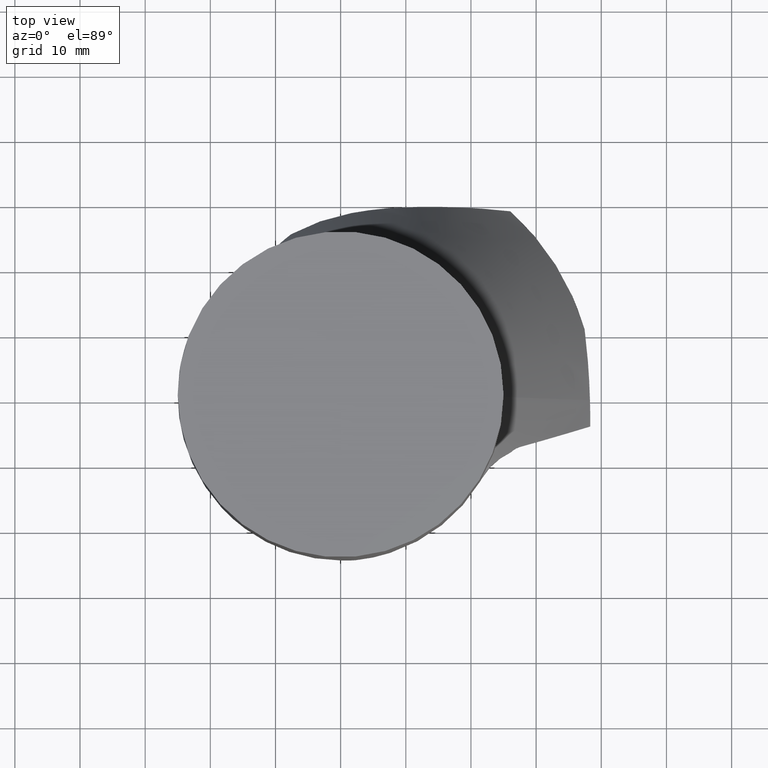
[diagram: clean part render]
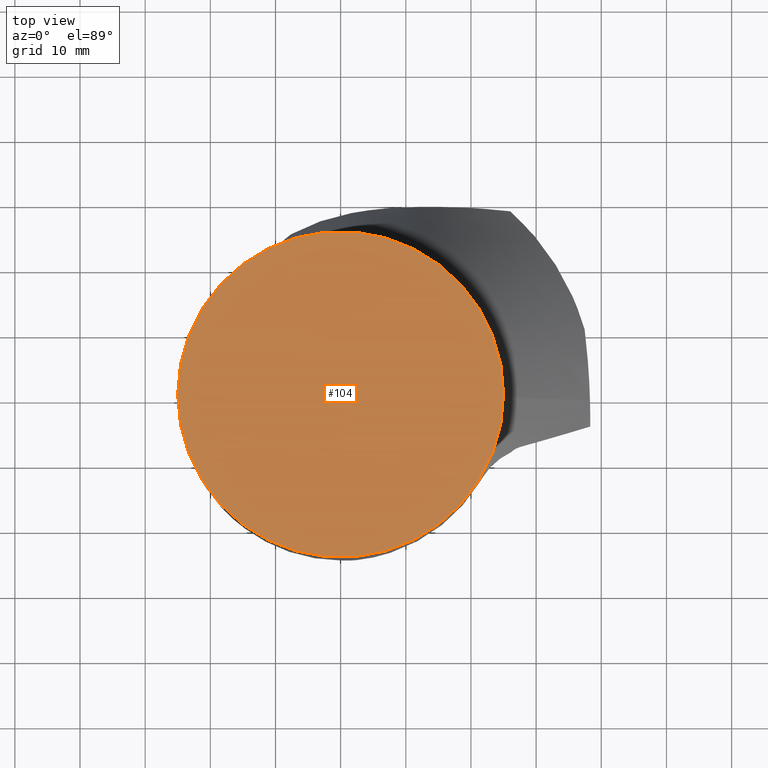
[diagram: same view with one face highlighted and labeled with its STEP entity id]
A machine part, top view. The second image highlights one B-rep face of the part: STEP entity #104.
In plain terms, the highlighted planar face has unit normal (0, 0, 1).
Its self-contained STEP definition (entity closure, byte-faithful):
#104=ADVANCED_FACE('',(#164),#165,.T.);
#164=FACE_OUTER_BOUND('',#224,.T.);
#165=PLANE('',#225);
#224=EDGE_LOOP('',(#475,#476));
#225=AXIS2_PLACEMENT_3D('',#477,#478,#479);
#475=ORIENTED_EDGE('',*,*,#533,.F.);
#476=ORIENTED_EDGE('',*,*,#546,.F.);
#477=CARTESIAN_POINT('',(0.0,0.0,7.105427E-014));
#478=DIRECTION('',(0.0,0.0,1.0));
#479=DIRECTION('',(1.0,0.0,0.0));
#533=EDGE_CURVE('',#652,#646,#654,.T.);
#546=EDGE_CURVE('',#646,#652,#675,.T.);
#646=VERTEX_POINT('',#876);
#652=VERTEX_POINT('',#883);
#654=CIRCLE('',#886,25.0);
#675=CIRCLE('',#935,25.0);
#876=CARTESIAN_POINT('',(25.0,5.370216E-015,0.0));
#883=CARTESIAN_POINT('',(-25.0,-1.406057E-014,-1.136868E-013));
#886=AXIS2_PLACEMENT_3D('',#1112,#1113,#1114);
#935=AXIS2_PLACEMENT_3D('',#1140,#1141,#1142);
#1112=CARTESIAN_POINT('',(-2.842171E-014,6.613093E-015,0.0));
#1113=DIRECTION('',(0.0,0.0,-1.0));
#1114=DIRECTION('',(1.0,0.0,0.0));
#1140=CARTESIAN_POINT('',(-2.842171E-014,6.613093E-015,0.0));
#1141=DIRECTION('',(0.0,0.0,-1.0));
#1142=DIRECTION('',(1.0,0.0,0.0));